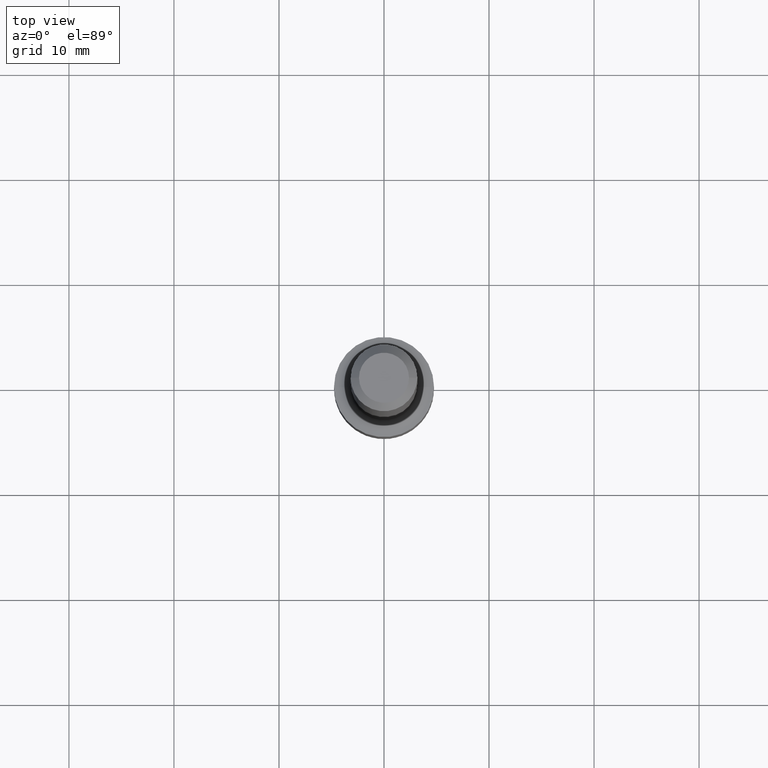
[diagram: clean part render]
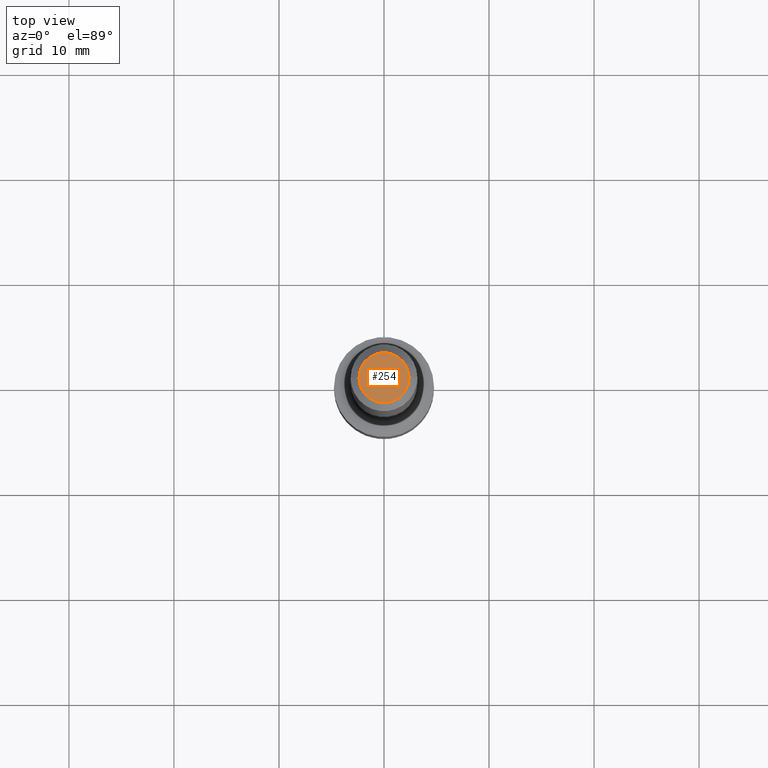
[diagram: same view with one face highlighted and labeled with its STEP entity id]
A machine part, top view. The second image highlights one B-rep face of the part: STEP entity #254.
In plain terms, the highlighted planar face has unit normal (0, -0, -1).
Its self-contained STEP definition (entity closure, byte-faithful):
#63 = EDGE_CURVE ( 'NONE', #305, #310, #88, .T. ) ;
#65 = AXIS2_PLACEMENT_3D ( 'NONE', #124, #439, #87 ) ;
#75 = CIRCLE ( 'NONE', #129, 0.09379999999999999449 ) ;
#87 = DIRECTION ( 'NONE',  ( 1.000000000000000000, -6.982962677686266711E-15, 4.876421767504995250E-29 ) ) ;
#88 = CIRCLE ( 'NONE', #65, 0.09379999999999999449 ) ;
#105 = FACE_OUTER_BOUND ( 'NONE', #172, .T. ) ;
#124 = CARTESIAN_POINT ( 'NONE',  ( 3.743544432386658428E-46, -5.344789307371216869E-32, -1.530808498934191509E-17 ) ) ;
#129 = AXIS2_PLACEMENT_3D ( 'NONE', #144, #441, #253 ) ;
#144 = CARTESIAN_POINT ( 'NONE',  ( 3.743544432386658428E-46, -5.344789307371216869E-32, -1.530808498934191509E-17 ) ) ;
#172 = EDGE_LOOP ( 'NONE', ( #423, #415 ) ) ;
#178 = DIRECTION ( 'NONE',  ( 2.438088387897960049E-29, -3.491481338843145188E-15, -1.000000000000000000 ) ) ;
#182 = AXIS2_PLACEMENT_3D ( 'NONE', #227, #178, #419 ) ;
#227 = CARTESIAN_POINT ( 'NONE',  ( 6.550018991669718048E-16, 0.09379999999999999449, -3.351549920781579832E-16 ) ) ;
#253 = DIRECTION ( 'NONE',  ( 1.000000000000000000, -6.982962677686266711E-15, 4.876421767504995250E-29 ) ) ;
#254 = ADVANCED_FACE ( 'NONE', ( #105 ), #376, .F. ) ;
#305 = VERTEX_POINT ( 'NONE', #449 ) ;
#310 = VERTEX_POINT ( 'NONE', #413 ) ;
#376 = PLANE ( 'NONE',  #182 ) ;
#388 = EDGE_CURVE ( 'NONE', #310, #305, #75, .T. ) ;
#413 = CARTESIAN_POINT ( 'NONE',  ( -0.09379999999999999449, 7.094690080529240967E-16, -1.530808498934668523E-17 ) ) ;
#415 = ORIENTED_EDGE ( 'NONE', *, *, #63, .T. ) ;
#419 = DIRECTION ( 'NONE',  ( -1.000000000000000000, 6.982962677686265922E-15, -4.876176775795935793E-29 ) ) ;
#423 = ORIENTED_EDGE ( 'NONE', *, *, #388, .T. ) ;
#439 = DIRECTION ( 'NONE',  ( -2.445468806185136597E-29, 3.491481338843145583E-15, 1.000000000000000000 ) ) ;
#441 = DIRECTION ( 'NONE',  ( -2.445468806185136597E-29, 3.491481338843145583E-15, 1.000000000000000000 ) ) ;
#449 = CARTESIAN_POINT ( 'NONE',  ( 0.09379999999999999449, -8.050055898421590350E-16, -1.530808498933680906E-17 ) ) ;